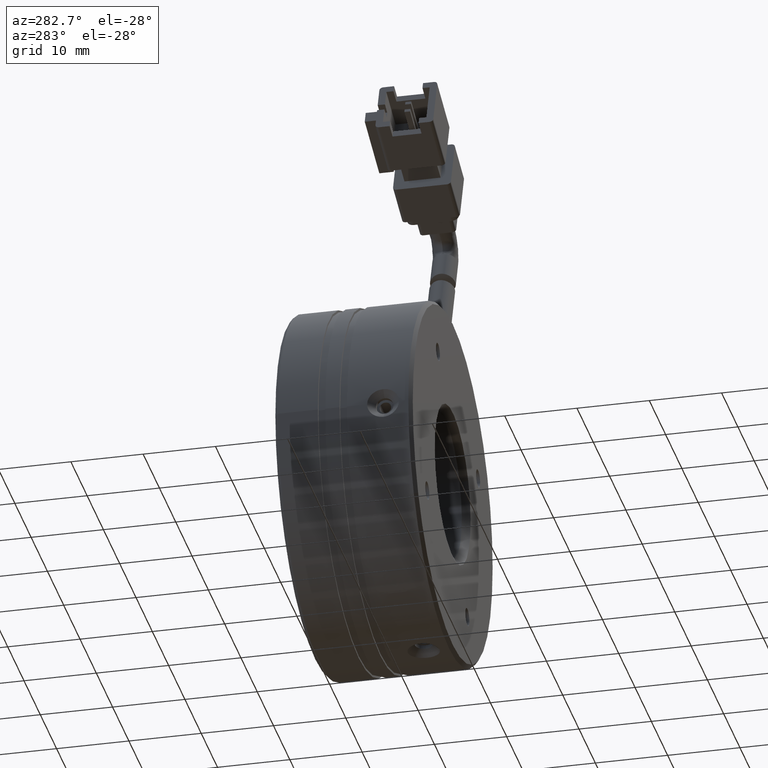
[diagram: clean part render]
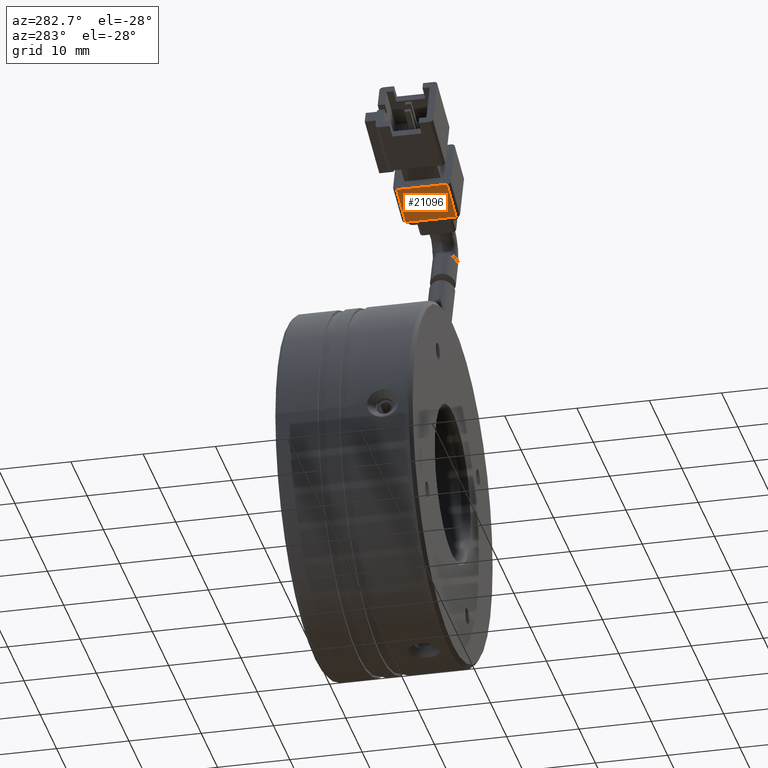
[diagram: same view with one face highlighted and labeled with its STEP entity id]
A machine part, auxiliary view. The second image highlights one B-rep face of the part: STEP entity #21096.
In plain terms, the highlighted planar face has unit normal (0.342, 0, 0.9397).
Its self-contained STEP definition (entity closure, byte-faithful):
#34 = DIRECTION ( 'NONE',  ( -2.375254075703266300E-017, 1.000000000000000000, -1.464114434986577600E-016 ) ) ;
#1347 = VERTEX_POINT ( 'NONE', #41324 ) ;
#3640 = LINE ( 'NONE', #50781, #24598 ) ;
#4406 = VERTEX_POINT ( 'NONE', #32995 ) ;
#5309 = CARTESIAN_POINT ( 'NONE',  ( -87.13469956923198400, 10.12753120665740000, 44.42465660451092900 ) ) ;
#8838 = VERTEX_POINT ( 'NONE', #5309 ) ;
#10342 = ORIENTED_EDGE ( 'NONE', *, *, #39358, .F. ) ;
#10463 = VERTEX_POINT ( 'NONE', #32041 ) ;
#11763 = VECTOR ( 'NONE', #34, 1000.000000000000000 ) ;
#13515 = ORIENTED_EDGE ( 'NONE', *, *, #28291, .F. ) ;
#14395 = LINE ( 'NONE', #16453, #24933 ) ;
#16453 = CARTESIAN_POINT ( 'NONE',  ( -92.77285529394741600, 10.12753120665740000, 46.47677746446493800 ) ) ;
#16615 = EDGE_LOOP ( 'NONE', ( #36892, #13515, #10342, #49134 ) ) ;
#18283 = EDGE_CURVE ( 'NONE', #8838, #1347, #47074, .T. ) ;
#19637 = DIRECTION ( 'NONE',  ( 0.3420201433256689900, 1.457056004483707500E-016, 0.9396926207859083200 ) ) ;
#21096 = ADVANCED_FACE ( 'NONE', ( #34657 ), #23471, .F. ) ;
#23471 = PLANE ( 'NONE',  #33726 ) ;
#23566 = CARTESIAN_POINT ( 'NONE',  ( -87.13469956923199800, 10.12753120665740000, 44.42465660451093600 ) ) ;
#24598 = VECTOR ( 'NONE', #27299, 1000.000000000000000 ) ;
#24933 = VECTOR ( 'NONE', #35816, 1000.000000000000000 ) ;
#27299 = DIRECTION ( 'NONE',  ( 0.9396926207859083200, -2.775557561562888300E-017, -0.3420201433256689900 ) ) ;
#28291 = EDGE_CURVE ( 'NONE', #4406, #8838, #32764, .T. ) ;
#32041 = CARTESIAN_POINT ( 'NONE',  ( -92.77285529394741600, 3.127531206657402100, 46.47677746446493800 ) ) ;
#32764 = LINE ( 'NONE', #23566, #11763 ) ;
#32995 = CARTESIAN_POINT ( 'NONE',  ( -87.13469956923199800, 3.127531206657402600, 44.42465660451093600 ) ) ;
#33726 = AXIS2_PLACEMENT_3D ( 'NONE', #43279, #19637, #47166 ) ;
#34657 = FACE_OUTER_BOUND ( 'NONE', #16615, .T. ) ;
#35816 = DIRECTION ( 'NONE',  ( 1.047392001341547600E-016, -1.000000000000000000, -1.636536343974965800E-016 ) ) ;
#36191 = DIRECTION ( 'NONE',  ( -0.9396926207859083200, 2.775557561562888300E-017, 0.3420201433256689900 ) ) ;
#36421 = EDGE_CURVE ( 'NONE', #1347, #10463, #14395, .T. ) ;
#36432 = CARTESIAN_POINT ( 'NONE',  ( -87.13469956923198400, 10.12753120665740000, 44.42465660451092900 ) ) ;
#36719 = VECTOR ( 'NONE', #36191, 1000.000000000000000 ) ;
#36892 = ORIENTED_EDGE ( 'NONE', *, *, #18283, .F. ) ;
#39358 = EDGE_CURVE ( 'NONE', #10463, #4406, #3640, .T. ) ;
#41324 = CARTESIAN_POINT ( 'NONE',  ( -92.77285529394743000, 10.12753120665740000, 46.47677746446494500 ) ) ;
#43279 = CARTESIAN_POINT ( 'NONE',  ( -87.13469956923198400, 10.12753120665740000, 44.42465660451092900 ) ) ;
#47074 = LINE ( 'NONE', #36432, #36719 ) ;
#47166 = DIRECTION ( 'NONE',  ( 2.375254075703266300E-017, -1.000000000000000000, 1.464114434986577600E-016 ) ) ;
#49134 = ORIENTED_EDGE ( 'NONE', *, *, #36421, .F. ) ;
#50781 = CARTESIAN_POINT ( 'NONE',  ( -87.13469956923198400, 3.127531206657397700, 44.42465660451092900 ) ) ;